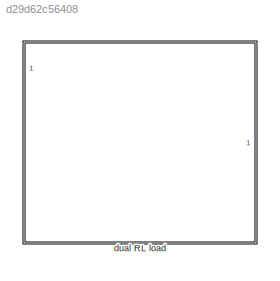
MODEL slx_d29d62c56408
KIND library
CONFIG AbsTol = auto
CONFIG EnableMultiTasking = off
CONFIG FixedStep = auto
CONFIG MaxStep = auto
CONFIG MinStep = auto
CONFIG RelTol = 1e-3
CONFIG SampleTimeConstraint = Unconstrained
CONFIG SolverName = VariableStepAuto
CONFIG StartTime = 0.0
CONFIG StopTime = 10.0
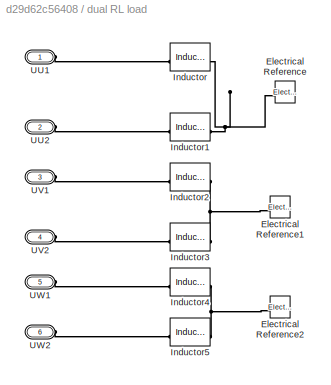
BLOCK [SubSystem] dual RL load
BLOCK [Reference] dual RL load/Electrical Reference  REF=fl_lib/Electrical/Electrical Elements/Electrical Reference
  NameLocation = top
  SourceBlock = fl_lib/Electrical/Electrical Elements/Electrical Reference
  SourceType = Electrical Reference
BLOCK [Reference] dual RL load/Electrical Reference1  REF=fl_lib/Electrical/Electrical Elements/Electrical Reference
  NameLocation = top
  SourceBlock = fl_lib/Electrical/Electrical Elements/Electrical Reference
  SourceType = Electrical Reference
BLOCK [Reference] dual RL load/Electrical Reference2  REF=fl_lib/Electrical/Electrical Elements/Electrical Reference
  NameLocation = top
  SourceBlock = fl_lib/Electrical/Electrical Elements/Electrical Reference
  SourceType = Electrical Reference
BLOCK [Reference] dual RL load/Inductor  REF=fl_lib/Electrical/Electrical Elements/Inductor
  SourceBlock = fl_lib/Electrical/Electrical Elements/Inductor
  SourceType = Inductor
BLOCK [Reference] dual RL load/Inductor1  REF=fl_lib/Electrical/Electrical Elements/Inductor
  NameLocation = top
  SourceBlock = fl_lib/Electrical/Electrical Elements/Inductor
  SourceType = Inductor
BLOCK [Reference] dual RL load/Inductor2  REF=fl_lib/Electrical/Electrical Elements/Inductor
  SourceBlock = fl_lib/Electrical/Electrical Elements/Inductor
  SourceType = Inductor
BLOCK [Reference] dual RL load/Inductor3  REF=fl_lib/Electrical/Electrical Elements/Inductor
  NameLocation = top
  SourceBlock = fl_lib/Electrical/Electrical Elements/Inductor
  SourceType = Inductor
BLOCK [Reference] dual RL load/Inductor4  REF=fl_lib/Electrical/Electrical Elements/Inductor
  SourceBlock = fl_lib/Electrical/Electrical Elements/Inductor
  SourceType = Inductor
BLOCK [Reference] dual RL load/Inductor5  REF=fl_lib/Electrical/Electrical Elements/Inductor
  NameLocation = top
  SourceBlock = fl_lib/Electrical/Electrical Elements/Inductor
  SourceType = Inductor
BLOCK [PMIOPort] dual RL load/UU1
  Side = Left
BLOCK [PMIOPort] dual RL load/UU2
  Port = 2
  Side = Left
BLOCK [PMIOPort] dual RL load/UV1
  Port = 3
  Side = Left
BLOCK [PMIOPort] dual RL load/UV2
  Port = 4
  Side = Left
BLOCK [PMIOPort] dual RL load/UW1
  Port = 5
  Side = Left
BLOCK [PMIOPort] dual RL load/UW2
  Port = 6
  Side = Left
PNET net1: dual RL load/Electrical Reference1:LConn1 -- dual RL load/Inductor2:RConn1 -- dual RL load/Inductor3:RConn1
PNET net2: dual RL load/Electrical Reference2:LConn1 -- dual RL load/Inductor4:RConn1 -- dual RL load/Inductor5:RConn1
PNET net3: dual RL load/Electrical Reference:LConn1 -- dual RL load/Inductor1:RConn1 -- dual RL load/Inductor:RConn1
PLINE dual RL load/Inductor1:LConn1 -- dual RL load/UU2:RConn1
PLINE dual RL load/Inductor2:LConn1 -- dual RL load/UV1:RConn1
PLINE dual RL load/Inductor3:LConn1 -- dual RL load/UV2:RConn1
PLINE dual RL load/Inductor4:LConn1 -- dual RL load/UW1:RConn1
PLINE dual RL load/Inductor5:LConn1 -- dual RL load/UW2:RConn1
PLINE dual RL load/Inductor:LConn1 -- dual RL load/UU1:RConn1
note: PNET lines group multi-terminal physical nets as a canonical sorted terminal list (undirected conserving connections); 2-terminal nets keep the pairwise PLINE form
